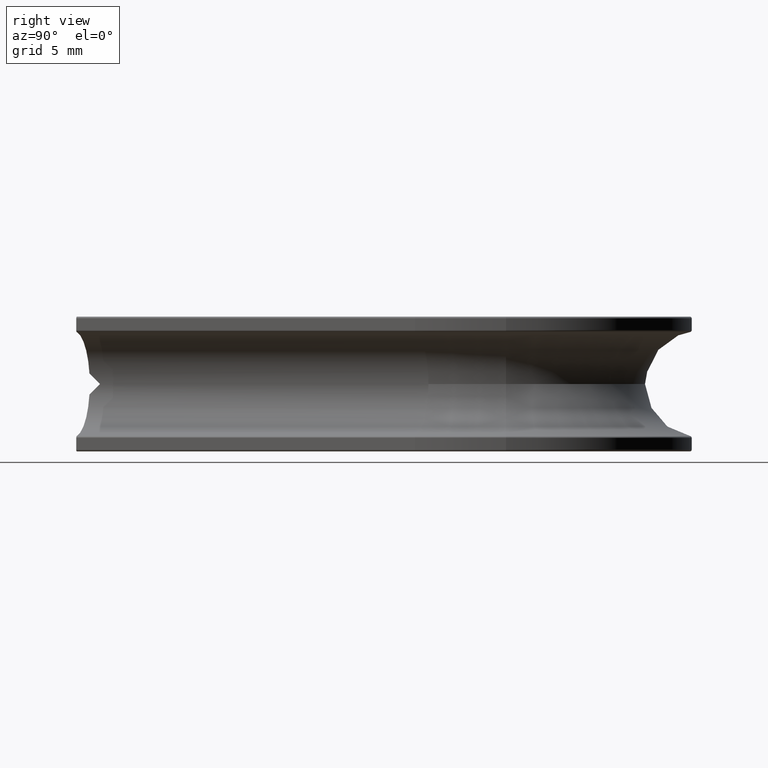
[diagram: clean part render]
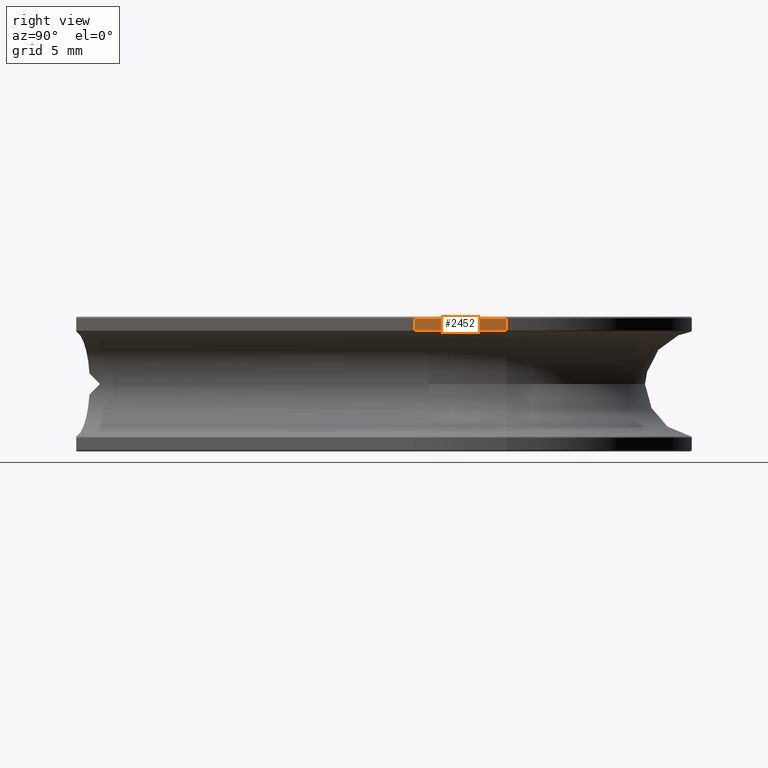
[diagram: same view with one face highlighted and labeled with its STEP entity id]
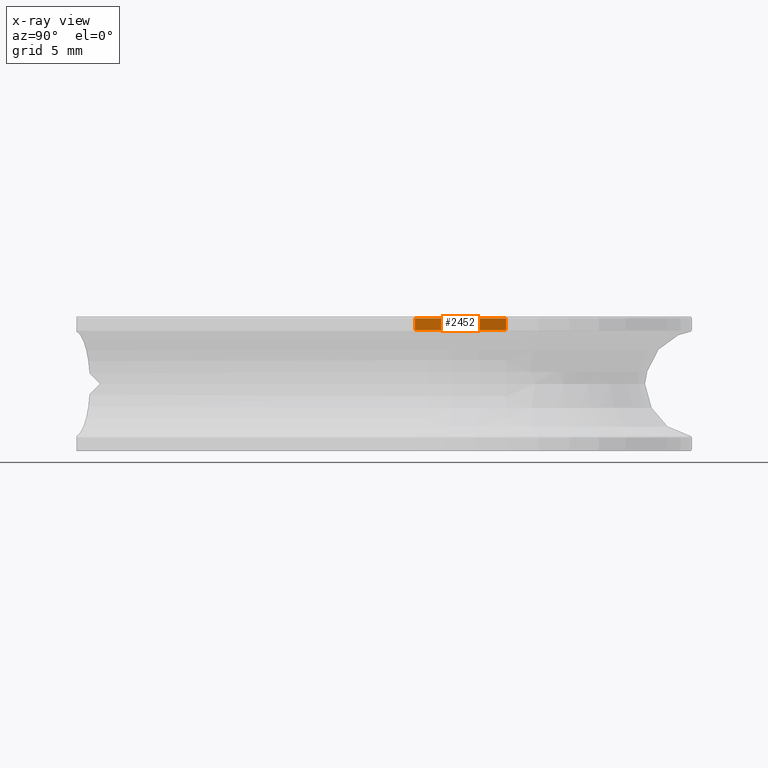
[diagram: x-ray of the same camera — body ghosted, the highlighted face saturated]
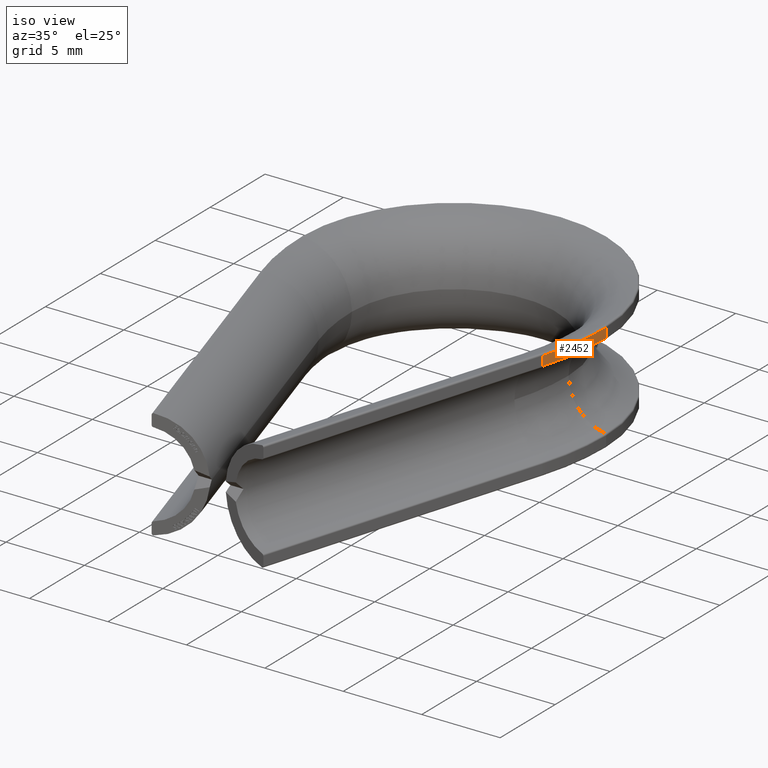
[diagram: same view with one face highlighted and labeled with its STEP entity id]
A machine part, right view. The second image highlights one B-rep face of the part: STEP entity #2452.
The next image is the same camera in x-ray: the body ghosted, the highlighted face saturated — about 0% of this face is hidden behind the body in this view.
A second angle (iso view) of the same face is appended — the face is thin or edge-on in the first view.
In plain terms, the highlighted cylindrical surface (partial cylindrical patch) has radius 16.2 mm, axis along (-0, -0, -1).
Its self-contained STEP definition (entity closure, byte-faithful):
#143 = VERTEX_POINT ( 'NONE', #8843 ) ;
#170 = CIRCLE ( 'NONE', #11930, 16.19999999999999900 ) ;
#302 = CARTESIAN_POINT ( 'NONE',  ( 8.987041564792177100, 16.74694376528118100, 3.532704346531138300 ) ) ;
#475 = CARTESIAN_POINT ( 'NONE',  ( 8.987041564792177100, 16.74694376528118100, 3.420526275297413500 ) ) ;
#595 = ORIENTED_EDGE ( 'NONE', *, *, #10591, .T. ) ;
#802 = CARTESIAN_POINT ( 'NONE',  ( 9.700000000000001100, 21.50000000000000000, 2.814249455894057400 ) ) ;
#1115 = ORIENTED_EDGE ( 'NONE', *, *, #11270, .T. ) ;
#1950 = EDGE_CURVE ( 'NONE', #12687, #11451, #11119, .T. ) ;
#2309 = VERTEX_POINT ( 'NONE', #475 ) ;
#2452 = ADVANCED_FACE ( 'NONE', ( #10690 ), #5312, .T. ) ;
#3577 = AXIS2_PLACEMENT_3D ( 'NONE', #5410, #11418, #6750 ) ;
#3746 = DIRECTION ( 'NONE',  ( -0.0000000000000000000, -0.0000000000000000000, -1.000000000000000000 ) ) ;
#3992 = DIRECTION ( 'NONE',  ( -0.0000000000000000000, -0.0000000000000000000, -1.000000000000000000 ) ) ;
#4798 = VECTOR ( 'NONE', #9717, 1000.000000000000000 ) ;
#4801 = VECTOR ( 'NONE', #9126, 1000.000000000000000 ) ;
#5041 = DIRECTION ( 'NONE',  ( 1.000000000000000000, 0.0000000000000000000, 0.0000000000000000000 ) ) ;
#5312 = CYLINDRICAL_SURFACE ( 'NONE', #5721, 16.19999999999999900 ) ;
#5410 = CARTESIAN_POINT ( 'NONE',  ( -6.500000000000000000, 21.50000000000000000, 2.814249455894057800 ) ) ;
#5721 = AXIS2_PLACEMENT_3D ( 'NONE', #13376, #3992, #13419 ) ;
#6750 = DIRECTION ( 'NONE',  ( 1.000000000000000000, 0.0000000000000000000, 0.0000000000000000000 ) ) ;
#7693 = EDGE_LOOP ( 'NONE', ( #9669, #1115, #9154, #595 ) ) ;
#8227 = CIRCLE ( 'NONE', #3577, 16.19999999999999900 ) ;
#8297 = LINE ( 'NONE', #302, #4798 ) ;
#8843 = CARTESIAN_POINT ( 'NONE',  ( 8.987041564792177100, 16.74694376528118100, 2.814249455894057800 ) ) ;
#9126 = DIRECTION ( 'NONE',  ( 0.0000000000000000000, 0.0000000000000000000, 1.000000000000000000 ) ) ;
#9154 = ORIENTED_EDGE ( 'NONE', *, *, #1950, .T. ) ;
#9669 = ORIENTED_EDGE ( 'NONE', *, *, #14172, .F. ) ;
#9717 = DIRECTION ( 'NONE',  ( 0.0000000000000000000, 0.0000000000000000000, 1.000000000000000000 ) ) ;
#10591 = EDGE_CURVE ( 'NONE', #11451, #2309, #170, .T. ) ;
#10690 = FACE_OUTER_BOUND ( 'NONE', #7693, .T. ) ;
#11033 = CARTESIAN_POINT ( 'NONE',  ( 9.700000000000001100, 21.50000000000000000, 3.420526275297413500 ) ) ;
#11119 = LINE ( 'NONE', #11574, #4801 ) ;
#11270 = EDGE_CURVE ( 'NONE', #143, #12687, #8227, .T. ) ;
#11418 = DIRECTION ( 'NONE',  ( 0.0000000000000000000, 0.0000000000000000000, 1.000000000000000000 ) ) ;
#11451 = VERTEX_POINT ( 'NONE', #11033 ) ;
#11574 = CARTESIAN_POINT ( 'NONE',  ( 9.700000000000001100, 21.50000000000000000, 3.532704346531138300 ) ) ;
#11930 = AXIS2_PLACEMENT_3D ( 'NONE', #14432, #3746, #5041 ) ;
#12687 = VERTEX_POINT ( 'NONE', #802 ) ;
#13376 = CARTESIAN_POINT ( 'NONE',  ( -6.500000000000000000, 21.50000000000000000, 0.0000000000000000000 ) ) ;
#13419 = DIRECTION ( 'NONE',  ( -1.000000000000000000, 0.0000000000000000000, 0.0000000000000000000 ) ) ;
#14172 = EDGE_CURVE ( 'NONE', #143, #2309, #8297, .T. ) ;
#14432 = CARTESIAN_POINT ( 'NONE',  ( -6.500000000000000000, 21.50000000000000000, 3.420526275297413500 ) ) ;